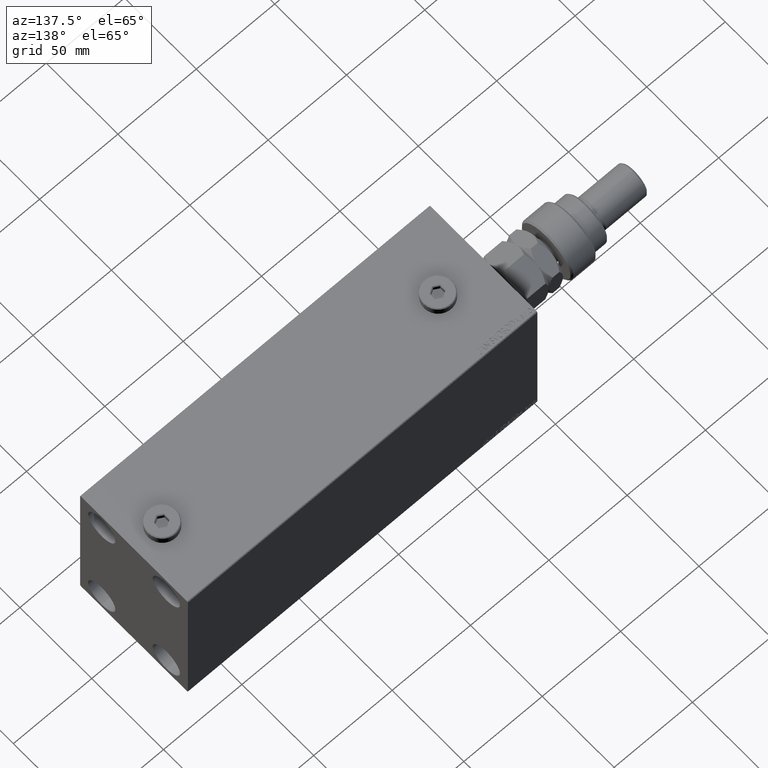
[diagram: clean part render]
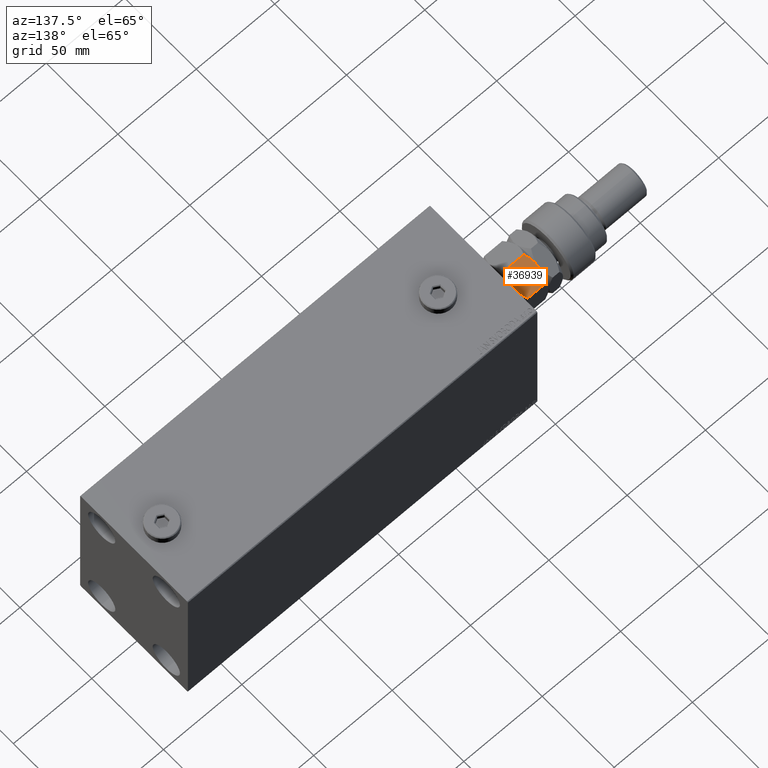
[diagram: same view with one face highlighted and labeled with its STEP entity id]
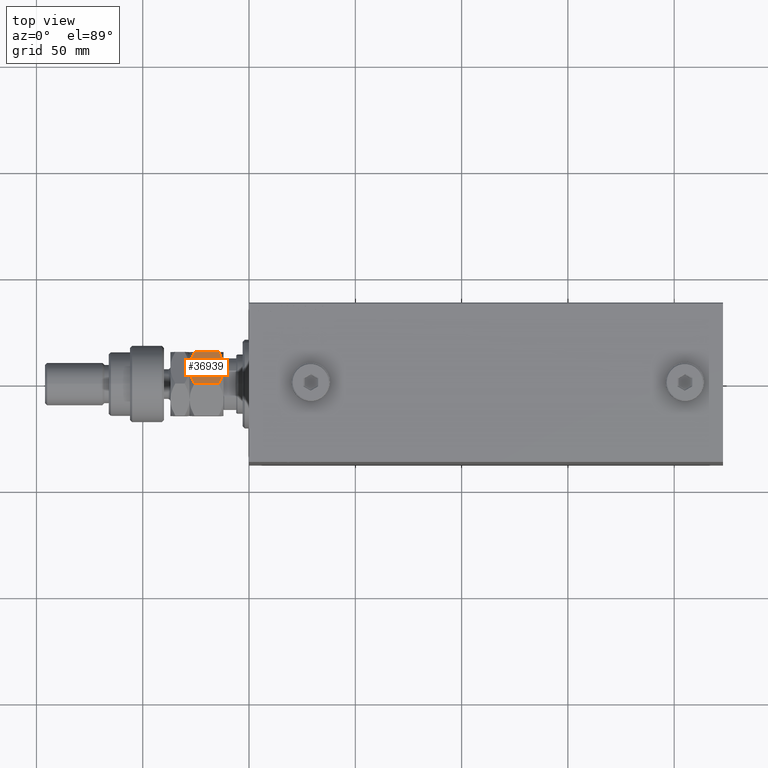
[diagram: same view with one face highlighted and labeled with its STEP entity id]
A machine part, auxiliary view. The second image highlights one B-rep face of the part: STEP entity #36939.
A second angle (top view) of the same face is appended — the face is thin or edge-on in the first view.
In plain terms, the highlighted planar face has unit normal (-0, -0.5, -0.866).
Its self-contained STEP definition (entity closure, byte-faithful):
#139 = VERTEX_POINT ( 'NONE', #46562 ) ;
#441 = CARTESIAN_POINT ( 'NONE',  ( 12.61607045183964715, 10.03661640420386902, 1.060479031370879843 ) ) ;
#1463 = B_SPLINE_CURVE_WITH_KNOTS ( 'NONE', 3,
 ( #33589, #4100, #33827, #441, #44535, #11172 ),
 .UNSPECIFIED., .F., .F.,
 ( 4, 2, 4 ),
 ( 0.008977392552884443794, 0.01343452311421656532, 0.01789165367554868685 ),
 .UNSPECIFIED. ) ;
#1653 = CARTESIAN_POINT ( 'NONE',  ( 13.82389157469336283, 9.339280553791368789, 14.35851844025821400 ) ) ;
#1894 = CARTESIAN_POINT ( 'NONE',  ( 15.00000000000000000, 8.660254037844389075, 13.67949192431123784 ) ) ;
#2138 = CARTESIAN_POINT ( 'NONE',  ( 12.62116548881249756, 10.03367478323606221, 14.93551393225599710 ) ) ;
#2472 = DIRECTION ( 'NONE',  ( -0.4999999999999997780, -0.8660254037844388186, 0.000000000000000000 ) ) ;
#3758 = CARTESIAN_POINT ( 'NONE',  ( 15.00000000000000000, 8.660254037844389075, 2.320508075688765715 ) ) ;
#4100 = CARTESIAN_POINT ( 'NONE',  ( 8.804550678576910983, 12.23719837131869426, -5.031375706690542042E-16 ) ) ;
#4519 = ORIENTED_EDGE ( 'NONE', *, *, #38309, .F. ) ;
#4842 = VECTOR ( 'NONE', #35302, 1000.000000000000000 ) ;
#5014 = CARTESIAN_POINT ( 'NONE',  ( 7.621669386706803087E-17, 17.32050807568877104, 2.320508075688761718 ) ) ;
#5314 = CARTESIAN_POINT ( 'NONE',  ( 8.823580389329306328, 12.22621156269319798, 15.94046462602529957 ) ) ;
#5395 = EDGE_CURVE ( 'NONE', #45987, #20328, #17190, .T. ) ;
#7912 = CARTESIAN_POINT ( 'NONE',  ( 7.499999999999997335, 12.99038105676658184, 0.000000000000000000 ) ) ;
#9929 = CARTESIAN_POINT ( 'NONE',  ( 7.500000000000000000, 12.99038105676657651, 16.00000000000000000 ) ) ;
#10526 = AXIS2_PLACEMENT_3D ( 'NONE', #18050, #2472, #24882 ) ;
#10603 = VERTEX_POINT ( 'NONE', #3758 ) ;
#10682 = CARTESIAN_POINT ( 'NONE',  ( 6.195449321423087241, 13.74356374221446764, 16.00000000000000355 ) ) ;
#11172 = CARTESIAN_POINT ( 'NONE',  ( 15.00000000000000000, 8.660254037844389075, 2.320508075688765715 ) ) ;
#12376 = CARTESIAN_POINT ( 'NONE',  ( 3.803331551779305683E-16, 17.32050807568877104, 13.67949192431124317 ) ) ;
#12984 = VECTOR ( 'NONE', #14732, 1000.000000000000000 ) ;
#13467 = B_SPLINE_CURVE_WITH_KNOTS ( 'NONE', 3,
 ( #15293, #10682, #37703, #22846, #44051, #30166 ),
 .UNSPECIFIED., .F., .F.,
 ( 4, 2, 4 ),
 ( 0.008977392552884448998, 0.01343452311421656706, 0.01789165367554868338 ),
 .UNSPECIFIED. ) ;
#13742 = EDGE_CURVE ( 'NONE', #139, #18091, #41744, .T. ) ;
#14732 = DIRECTION ( 'NONE',  ( -0.000000000000000000, -0.000000000000000000, -1.000000000000000000 ) ) ;
#14970 = CARTESIAN_POINT ( 'NONE',  ( 6.176419610670692784, 13.75455055083996214, 0.05953537397470201609 ) ) ;
#15205 = CARTESIAN_POINT ( 'NONE',  ( 15.00000000000000000, 8.660254037844389075, 16.00000000000000000 ) ) ;
#15207 = CARTESIAN_POINT ( 'NONE',  ( 2.378834511187503331, 15.94708733029709080, 1.064486067744004671 ) ) ;
#15293 = CARTESIAN_POINT ( 'NONE',  ( 7.500000000000000000, 12.99038105676657651, 16.00000000000000000 ) ) ;
#15453 = CARTESIAN_POINT ( 'NONE',  ( 6.843123817691747490, 13.36962869744650639, -3.557538378468061917E-16 ) ) ;
#16750 = CARTESIAN_POINT ( 'NONE',  ( 10.11832554202262457, 11.47869010025374514, 15.71619733805371411 ) ) ;
#17190 = B_SPLINE_CURVE_WITH_KNOTS ( 'NONE', 3,
 ( #37621, #25937, #15207, #30079, #45161, #14970, #15453, #7912 ),
 .UNSPECIFIED., .F., .F.,
 ( 4, 2, 2, 4 ),
 ( 2.544309033652185071E-07, 0.004488823491893902638, 0.006733108022389172782, 0.008977392552884443794 ),
 .UNSPECIFIED. ) ;
#18050 = CARTESIAN_POINT ( 'NONE',  ( 15.00000000000000000, 8.660254037844389075, 16.00000000000000000 ) ) ;
#18091 = VERTEX_POINT ( 'NONE', #23921 ) ;
#20226 = ORIENTED_EDGE ( 'NONE', *, *, #13742, .F. ) ;
#20328 = VERTEX_POINT ( 'NONE', #24567 ) ;
#22419 = EDGE_LOOP ( 'NONE', ( #30130, #28134, #4519, #20226, #36621, #25832 ) ) ;
#22846 = CARTESIAN_POINT ( 'NONE',  ( 2.383929548160350631, 15.94414570932928576, 14.93952096862913059 ) ) ;
#23921 = CARTESIAN_POINT ( 'NONE',  ( 7.500000000000000000, 12.99038105676657651, 16.00000000000000000 ) ) ;
#24567 = CARTESIAN_POINT ( 'NONE',  ( 7.499999999999997335, 12.99038105676658184, 0.000000000000000000 ) ) ;
#24882 = DIRECTION ( 'NONE',  ( 0.8660254037844387076, -0.4999999999999997224, 0.000000000000000000 ) ) ;
#25832 = ORIENTED_EDGE ( 'NONE', *, *, #26208, .F. ) ;
#25937 = CARTESIAN_POINT ( 'NONE',  ( 1.176108425306640504, 16.64148155974179843, 1.641481559741787111 ) ) ;
#26208 = EDGE_CURVE ( 'NONE', #20328, #10603, #1463, .T. ) ;
#28134 = ORIENTED_EDGE ( 'NONE', *, *, #34184, .F. ) ;
#29328 = VERTEX_POINT ( 'NONE', #12376 ) ;
#29346 = LINE ( 'NONE', #15205, #12984 ) ;
#30079 = CARTESIAN_POINT ( 'NONE',  ( 4.247772349543482484, 14.86805556622358893, 0.4475714085130255149 ) ) ;
#30130 = ORIENTED_EDGE ( 'NONE', *, *, #5395, .F. ) ;
#30166 = CARTESIAN_POINT ( 'NONE',  ( 3.803331551779305683E-16, 17.32050807568877104, 13.67949192431124317 ) ) ;
#31890 = LINE ( 'NONE', #36020, #4842 ) ;
#31954 = FACE_OUTER_BOUND ( 'NONE', #22419, .T. ) ;
#32105 = CARTESIAN_POINT ( 'NONE',  ( 8.156876182308252510, 12.61113341608665728, 16.00000000000000355 ) ) ;
#33589 = CARTESIAN_POINT ( 'NONE',  ( 7.499999999999997335, 12.99038105676658184, 0.000000000000000000 ) ) ;
#33827 = CARTESIAN_POINT ( 'NONE',  ( 10.08691881950258740, 11.49682277995505331, 0.2303299219392160591 ) ) ;
#34184 = EDGE_CURVE ( 'NONE', #29328, #45987, #31890, .T. ) ;
#35302 = DIRECTION ( 'NONE',  ( -0.000000000000000000, -0.000000000000000000, -1.000000000000000000 ) ) ;
#35849 = PLANE ( 'NONE',  #10526 ) ;
#36020 = CARTESIAN_POINT ( 'NONE',  ( 0.000000000000000000, 17.32050807568877104, 16.00000000000000000 ) ) ;
#36621 = ORIENTED_EDGE ( 'NONE', *, *, #41288, .T. ) ;
#36939 = ADVANCED_FACE ( 'NONE', ( #31954 ), #35849, .F. ) ;
#37621 = CARTESIAN_POINT ( 'NONE',  ( 7.621669386706803087E-17, 17.32050807568877104, 2.320508075688761718 ) ) ;
#37703 = CARTESIAN_POINT ( 'NONE',  ( 4.913081180497409939, 14.48393933357810504, 15.76967007806078946 ) ) ;
#38309 = EDGE_CURVE ( 'NONE', #18091, #29328, #13467, .T. ) ;
#39154 = CARTESIAN_POINT ( 'NONE',  ( 10.75222765045651663, 11.11270654730956586, 15.55242859148697576 ) ) ;
#41288 = EDGE_CURVE ( 'NONE', #139, #10603, #29346, .T. ) ;
#41744 = B_SPLINE_CURVE_WITH_KNOTS ( 'NONE', 3,
 ( #1894, #1653, #2138, #39154, #16750, #5314, #32105, #9929 ),
 .UNSPECIFIED., .F., .F.,
 ( 4, 2, 2, 4 ),
 ( 2.544309033641602453E-07, 0.004488823491893906975, 0.006733108022389177119, 0.008977392552884448998 ),
 .UNSPECIFIED. ) ;
#44051 = CARTESIAN_POINT ( 'NONE',  ( 1.174746544192161846, 16.64226784216984356, 14.35773215783022572 ) ) ;
#44535 = CARTESIAN_POINT ( 'NONE',  ( 13.82525345580783949, 9.338494271363313004, 1.642267842169781833 ) ) ;
#45161 = CARTESIAN_POINT ( 'NONE',  ( 4.881674457977373649, 14.50207201327941320, 0.2838026619462936107 ) ) ;
#45987 = VERTEX_POINT ( 'NONE', #5014 ) ;
#46562 = CARTESIAN_POINT ( 'NONE',  ( 15.00000000000000000, 8.660254037844389075, 13.67949192431123784 ) ) ;